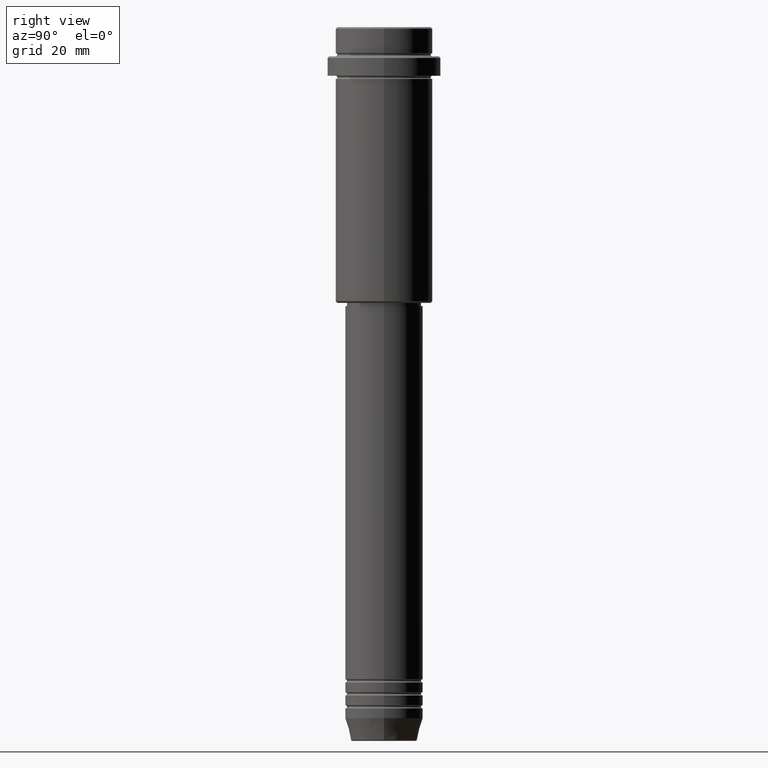
[diagram: clean part render]
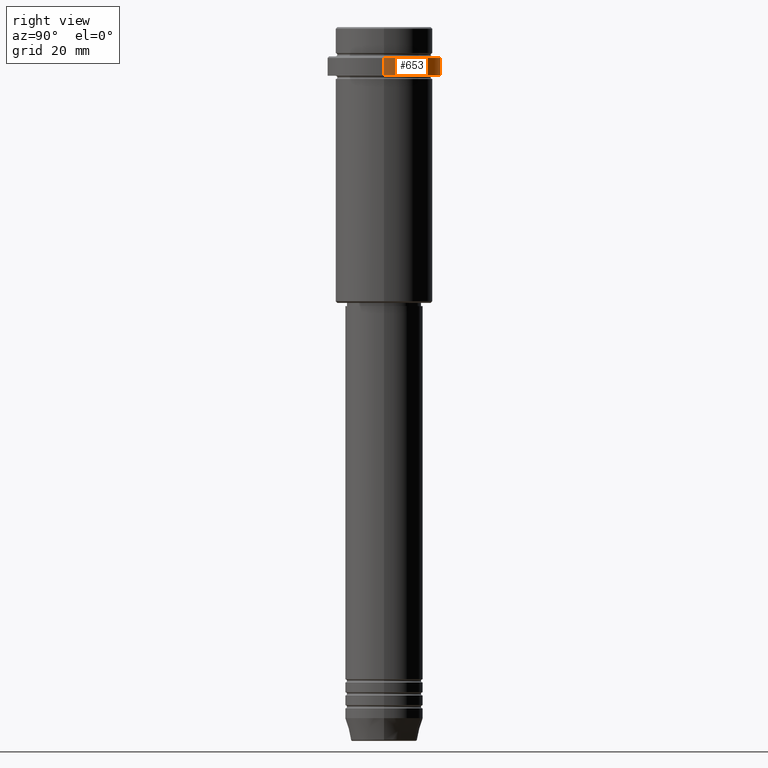
[diagram: same view with one face highlighted and labeled with its STEP entity id]
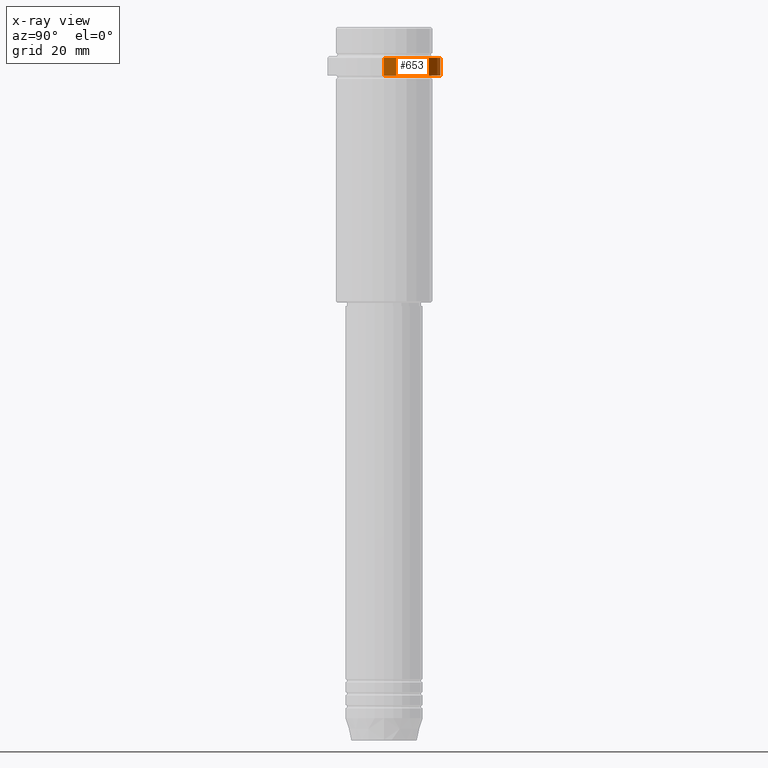
[diagram: x-ray of the same camera — body ghosted, the highlighted face saturated]
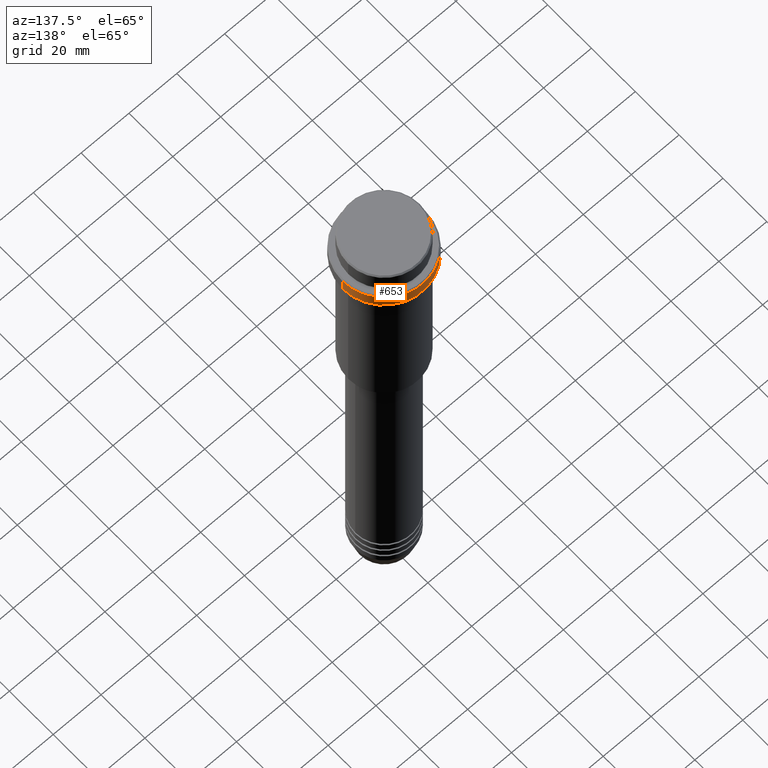
[diagram: same view with one face highlighted and labeled with its STEP entity id]
A machine part, right view. The second image highlights one B-rep face of the part: STEP entity #653.
The next image is the same camera in x-ray: the body ghosted, the highlighted face saturated — about 0% of this face is hidden behind the body in this view.
A second angle (auxiliary view) of the same face is appended — the face is thin or edge-on in the first view.
In plain terms, the highlighted cylindrical surface (partial cylindrical patch) has radius 17.5 mm, axis along (-0, -0, 1).
Its self-contained STEP definition (entity closure, byte-faithful):
#91 = CARTESIAN_POINT ( 'NONE',  ( -17.50000000000000000, 2.143131898507868248E-15, -9.500000000000028422 ) ) ;
#108 = EDGE_CURVE ( 'NONE', #1074, #248, #594, .T. ) ;
#148 = AXIS2_PLACEMENT_3D ( 'NONE', #793, #1026, #1031 ) ;
#153 = VECTOR ( 'NONE', #355, 1000.000000000000000 ) ;
#172 = LINE ( 'NONE', #602, #439 ) ;
#174 = ORIENTED_EDGE ( 'NONE', *, *, #504, .T. ) ;
#179 = CARTESIAN_POINT ( 'NONE',  ( -17.50000000000000000, 2.143131898507868248E-15, -15.00000000000000178 ) ) ;
#184 = AXIS2_PLACEMENT_3D ( 'NONE', #1081, #849, #220 ) ;
#220 = DIRECTION ( 'NONE',  ( 1.000000000000000000, 0.000000000000000000, 0.000000000000000000 ) ) ;
#248 = VERTEX_POINT ( 'NONE', #91 ) ;
#289 = EDGE_CURVE ( 'NONE', #823, #1074, #916, .T. ) ;
#294 = DIRECTION ( 'NONE',  ( -0.000000000000000000, -0.000000000000000000, 1.000000000000000000 ) ) ;
#355 = DIRECTION ( 'NONE',  ( -0.000000000000000000, -0.000000000000000000, 1.000000000000000000 ) ) ;
#438 = ORIENTED_EDGE ( 'NONE', *, *, #108, .T. ) ;
#439 = VECTOR ( 'NONE', #837, 1000.000000000000000 ) ;
#504 = EDGE_CURVE ( 'NONE', #248, #1319, #894, .T. ) ;
#517 = DIRECTION ( 'NONE',  ( 1.000000000000000000, 0.000000000000000000, 0.000000000000000000 ) ) ;
#594 = LINE ( 'NONE', #1332, #153 ) ;
#602 = CARTESIAN_POINT ( 'NONE',  ( 17.50000000000000000, 0.000000000000000000, 0.000000000000000000 ) ) ;
#608 = CARTESIAN_POINT ( 'NONE',  ( 0.000000000000000000, 0.000000000000000000, 0.000000000000000000 ) ) ;
#624 = EDGE_CURVE ( 'NONE', #823, #1319, #172, .T. ) ;
#632 = EDGE_LOOP ( 'NONE', ( #769, #438, #174, #1180 ) ) ;
#653 = ADVANCED_FACE ( 'NONE', ( #706 ), #1261, .T. ) ;
#706 = FACE_OUTER_BOUND ( 'NONE', #632, .T. ) ;
#769 = ORIENTED_EDGE ( 'NONE', *, *, #289, .T. ) ;
#793 = CARTESIAN_POINT ( 'NONE',  ( 0.000000000000000000, 0.000000000000000000, -9.500000000000028422 ) ) ;
#823 = VERTEX_POINT ( 'NONE', #1303 ) ;
#837 = DIRECTION ( 'NONE',  ( -0.000000000000000000, -0.000000000000000000, 1.000000000000000000 ) ) ;
#849 = DIRECTION ( 'NONE',  ( -0.000000000000000000, -0.000000000000000000, 1.000000000000000000 ) ) ;
#894 = CIRCLE ( 'NONE', #148, 17.50000000000000000 ) ;
#916 = CIRCLE ( 'NONE', #184, 17.50000000000000000 ) ;
#1026 = DIRECTION ( 'NONE',  ( 0.000000000000000000, 0.000000000000000000, -1.000000000000000000 ) ) ;
#1031 = DIRECTION ( 'NONE',  ( 1.000000000000000000, 0.000000000000000000, 0.000000000000000000 ) ) ;
#1074 = VERTEX_POINT ( 'NONE', #179 ) ;
#1081 = CARTESIAN_POINT ( 'NONE',  ( 0.000000000000000000, 0.000000000000000000, -15.00000000000000178 ) ) ;
#1130 = CARTESIAN_POINT ( 'NONE',  ( 17.50000000000000000, 0.000000000000000000, -9.500000000000028422 ) ) ;
#1180 = ORIENTED_EDGE ( 'NONE', *, *, #624, .F. ) ;
#1190 = AXIS2_PLACEMENT_3D ( 'NONE', #608, #294, #517 ) ;
#1261 = CYLINDRICAL_SURFACE ( 'NONE', #1190, 17.50000000000000000 ) ;
#1303 = CARTESIAN_POINT ( 'NONE',  ( 17.50000000000000000, 0.000000000000000000, -15.00000000000000178 ) ) ;
#1319 = VERTEX_POINT ( 'NONE', #1130 ) ;
#1332 = CARTESIAN_POINT ( 'NONE',  ( -17.50000000000000000, 2.143131898507868248E-15, 0.000000000000000000 ) ) ;